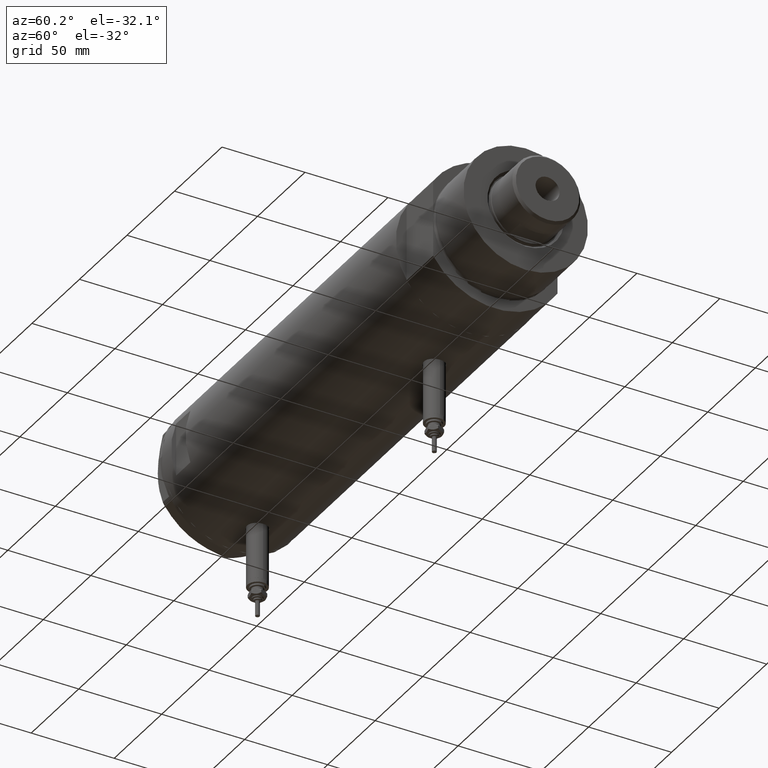
[diagram: clean part render]
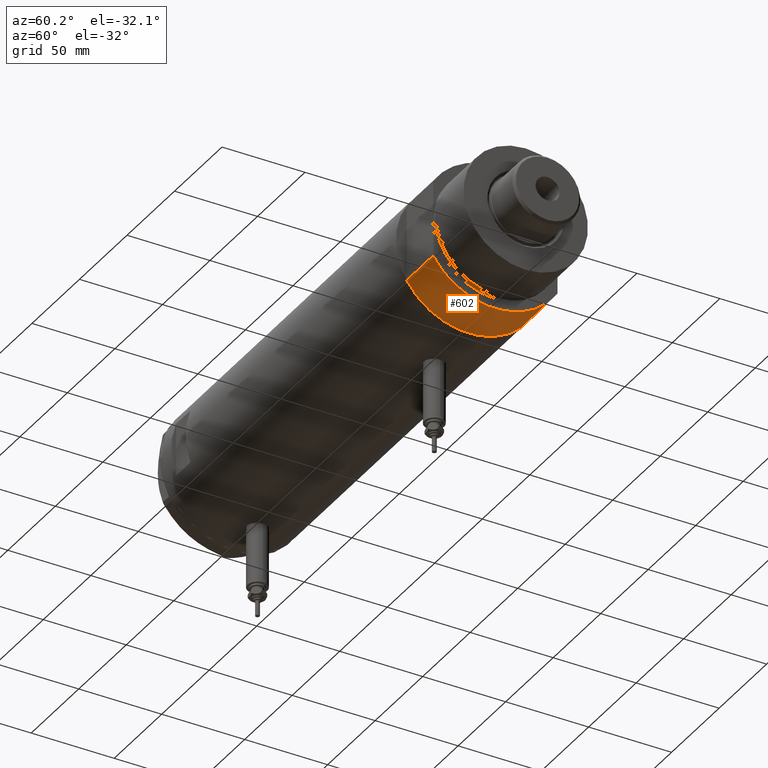
[diagram: same view with one face highlighted and labeled with its STEP entity id]
A machine part, auxiliary view. The second image highlights one B-rep face of the part: STEP entity #602.
In plain terms, the highlighted cylindrical surface (partial cylindrical patch) has radius 44 mm, axis along (-1, -0, 0).
Its self-contained STEP definition (entity closure, byte-faithful):
#217 = VECTOR ( 'NONE', #2682, 1000.000000000000000 ) ;
#264 = VERTEX_POINT ( 'NONE', #5181 ) ;
#354 = DIRECTION ( 'NONE',  ( 0.000000000000000000, 0.000000000000000000, 1.000000000000000000 ) ) ;
#499 = ORIENTED_EDGE ( 'NONE', *, *, #5377, .T. ) ;
#602 = ADVANCED_FACE ( 'NONE', ( #2730 ), #890, .T. ) ;
#634 = EDGE_LOOP ( 'NONE', ( #3025, #5827, #4897, #499 ) ) ;
#845 = CARTESIAN_POINT ( 'NONE',  ( 23.01629857296780557, -37.50000000000000000, 0.000000000000000000 ) ) ;
#890 = CYLINDRICAL_SURFACE ( 'NONE', #4150, 44.00000000000000000 ) ;
#894 = CARTESIAN_POINT ( 'NONE',  ( 23.01629857296780557, 37.50000000000000000, 0.000000000000000000 ) ) ;
#1194 = CIRCLE ( 'NONE', #2639, 44.00000000000000000 ) ;
#1282 = VECTOR ( 'NONE', #1320, 1000.000000000000000 ) ;
#1299 = CARTESIAN_POINT ( 'NONE',  ( 0.000000000000000000, 0.000000000000000000, 0.000000000000000000 ) ) ;
#1320 = DIRECTION ( 'NONE',  ( -0.000000000000000000, -0.000000000000000000, 1.000000000000000000 ) ) ;
#1408 = LINE ( 'NONE', #894, #1282 ) ;
#1689 = CARTESIAN_POINT ( 'NONE',  ( 23.01629857296780557, -37.50000000000000000, 27.89999999999999858 ) ) ;
#1744 = DIRECTION ( 'NONE',  ( 1.000000000000000000, 0.000000000000000000, 0.000000000000000000 ) ) ;
#2124 = CARTESIAN_POINT ( 'NONE',  ( 23.01629857296780557, 37.50000000000000000, 0.000000000000000000 ) ) ;
#2129 = CIRCLE ( 'NONE', #6008, 44.00000000000000000 ) ;
#2340 = EDGE_CURVE ( 'NONE', #2464, #5010, #2129, .T. ) ;
#2464 = VERTEX_POINT ( 'NONE', #2801 ) ;
#2639 = AXIS2_PLACEMENT_3D ( 'NONE', #3706, #5501, #1744 ) ;
#2682 = DIRECTION ( 'NONE',  ( -0.000000000000000000, -0.000000000000000000, 1.000000000000000000 ) ) ;
#2730 = FACE_OUTER_BOUND ( 'NONE', #634, .T. ) ;
#2759 = CARTESIAN_POINT ( 'NONE',  ( 0.000000000000000000, 0.000000000000000000, 27.89999999999999858 ) ) ;
#2801 = CARTESIAN_POINT ( 'NONE',  ( 23.01629857296780557, -37.50000000000000000, 0.000000000000000000 ) ) ;
#3025 = ORIENTED_EDGE ( 'NONE', *, *, #5711, .F. ) ;
#3137 = DIRECTION ( 'NONE',  ( 1.000000000000000000, 0.000000000000000000, 0.000000000000000000 ) ) ;
#3706 = CARTESIAN_POINT ( 'NONE',  ( 0.000000000000000000, 0.000000000000000000, 27.89999999999999858 ) ) ;
#3762 = DIRECTION ( 'NONE',  ( -1.000000000000000000, 0.000000000000000000, 0.000000000000000000 ) ) ;
#4150 = AXIS2_PLACEMENT_3D ( 'NONE', #2759, #4188, #3762 ) ;
#4188 = DIRECTION ( 'NONE',  ( -0.000000000000000000, -0.000000000000000000, -1.000000000000000000 ) ) ;
#4897 = ORIENTED_EDGE ( 'NONE', *, *, #2340, .T. ) ;
#5004 = LINE ( 'NONE', #845, #217 ) ;
#5010 = VERTEX_POINT ( 'NONE', #2124 ) ;
#5119 = EDGE_CURVE ( 'NONE', #2464, #5693, #5004, .T. ) ;
#5181 = CARTESIAN_POINT ( 'NONE',  ( 23.01629857296780557, 37.50000000000000000, 27.89999999999999858 ) ) ;
#5377 = EDGE_CURVE ( 'NONE', #5010, #264, #1408, .T. ) ;
#5501 = DIRECTION ( 'NONE',  ( 0.000000000000000000, 0.000000000000000000, 1.000000000000000000 ) ) ;
#5693 = VERTEX_POINT ( 'NONE', #1689 ) ;
#5711 = EDGE_CURVE ( 'NONE', #5693, #264, #1194, .T. ) ;
#5827 = ORIENTED_EDGE ( 'NONE', *, *, #5119, .F. ) ;
#6008 = AXIS2_PLACEMENT_3D ( 'NONE', #1299, #354, #3137 ) ;